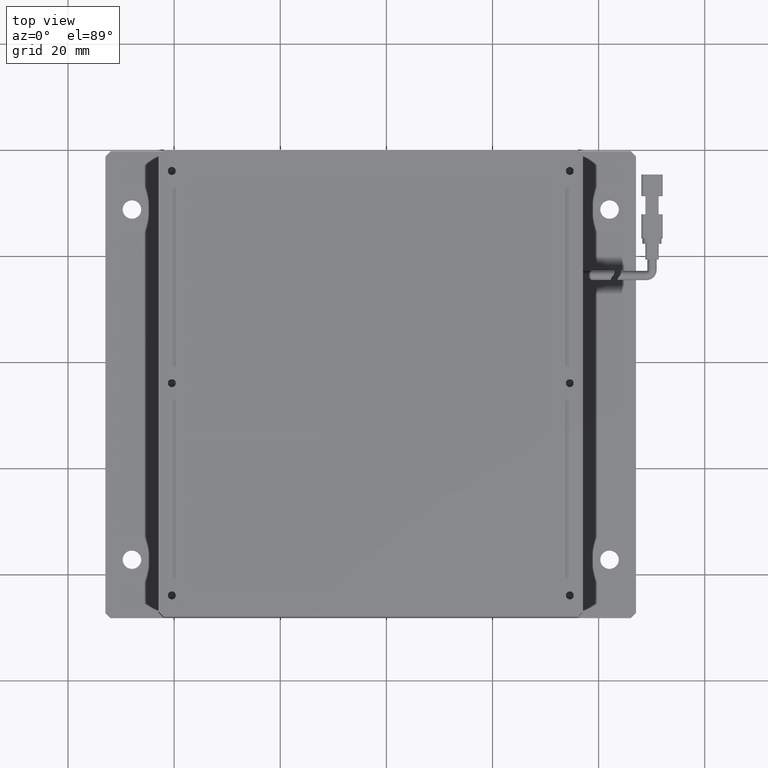
[diagram: clean part render]
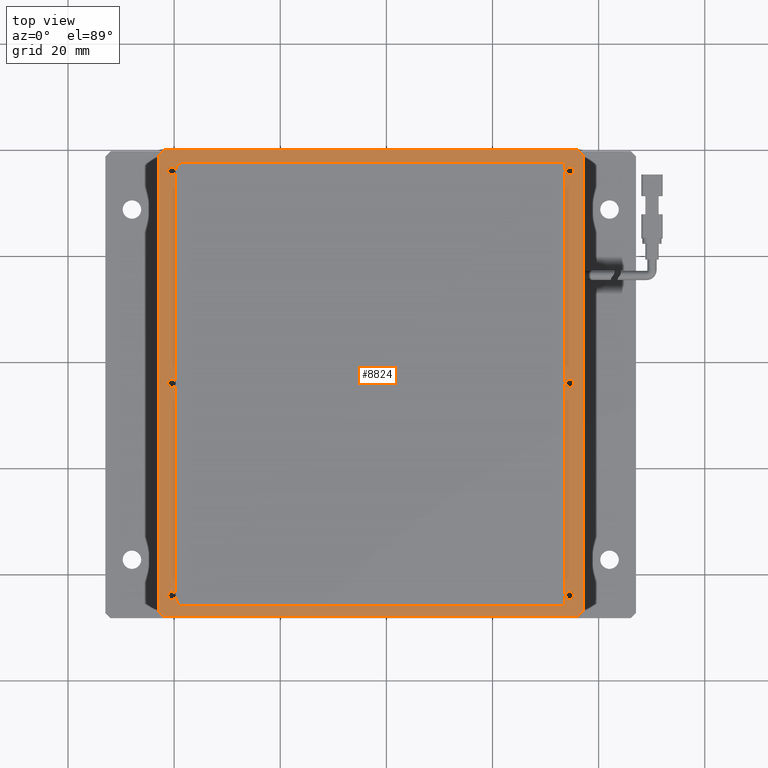
[diagram: same view with one face highlighted and labeled with its STEP entity id]
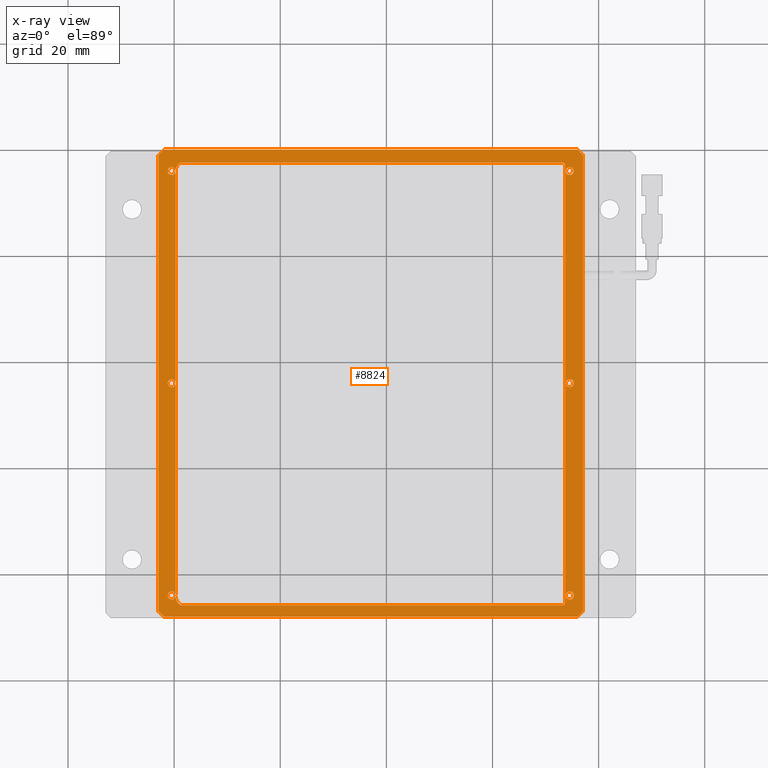
[diagram: x-ray of the same camera — body ghosted, the highlighted face saturated]
A machine part, top view. The second image highlights one B-rep face of the part: STEP entity #8824.
The next image is the same camera in x-ray: the body ghosted, the highlighted face saturated — about 0% of this face is hidden behind the body in this view.
In plain terms, the highlighted planar face has unit normal (0, 0, 1).
Its self-contained STEP definition (entity closure, byte-faithful):
#59 = AXIS2_PLACEMENT_3D ( 'NONE', #11058, #2837, #12440 ) ;
#161 = VERTEX_POINT ( 'NONE', #16675 ) ;
#191 = CARTESIAN_POINT ( 'NONE',  ( -22.94768995799926300, 38.79992363497525800, 12.99999999999545100 ) ) ;
#239 = EDGE_CURVE ( 'NONE', #1708, #8873, #7876, .T. ) ;
#327 = VERTEX_POINT ( 'NONE', #4115 ) ;
#369 = AXIS2_PLACEMENT_3D ( 'NONE', #549, #10198, #1959 ) ;
#391 = LINE ( 'NONE', #3868, #861 ) ;
#444 = EDGE_LOOP ( 'NONE', ( #10811, #7836, #14791, #6425, #3735, #10261, #12607, #2187 ) ) ;
#496 = CARTESIAN_POINT ( 'NONE',  ( 56.05231004200068400, -48.20007636502477800, 12.99999999999545300 ) ) ;
#545 = FACE_BOUND ( 'NONE', #16359, .T. ) ;
#549 = CARTESIAN_POINT ( 'NONE',  ( 53.02138361069504000, -45.42049587066020400, 12.99999999999545100 ) ) ;
#619 = CIRCLE ( 'NONE', #369, 0.6535848440912123100 ) ;
#774 = VECTOR ( 'NONE', #16755, 1000.000000000000000 ) ;
#861 = VECTOR ( 'NONE', #4813, 1000.000000000000000 ) ;
#917 = ORIENTED_EDGE ( 'NONE', *, *, #239, .F. ) ;
#974 = CIRCLE ( 'NONE', #2180, 1.704916820428607800 ) ;
#995 = CARTESIAN_POINT ( 'NONE',  ( -22.94768995799933400, -47.20007636502474200, 12.99999999999545300 ) ) ;
#1004 = FACE_OUTER_BOUND ( 'NONE', #444, .T. ) ;
#1015 = CARTESIAN_POINT ( 'NONE',  ( -17.99359334202489800, 35.85280168339946300, 12.99999999999545100 ) ) ;
#1356 = CIRCLE ( 'NONE', #5939, 1.975858414804687600 ) ;
#1365 = DIRECTION ( 'NONE',  ( 0.0000000000000000000, 0.0000000000000000000, -1.000000000000000000 ) ) ;
#1407 = DIRECTION ( 'NONE',  ( 1.000000000000000000, -4.440892098500626200E-016, 0.0000000000000000000 ) ) ;
#1463 = EDGE_CURVE ( 'NONE', #6021, #9990, #4423, .T. ) ;
#1568 = CARTESIAN_POINT ( 'NONE',  ( -17.72795718517141900, -44.35554108450326500, 12.99999999999545100 ) ) ;
#1574 = ORIENTED_EDGE ( 'NONE', *, *, #14729, .T. ) ;
#1639 = LINE ( 'NONE', #10894, #5771 ) ;
#1708 = VERTEX_POINT ( 'NONE', #1826 ) ;
#1826 = CARTESIAN_POINT ( 'NONE',  ( 53.67496845478625300, 36.99773376028026200, 12.99999999999545100 ) ) ;
#1889 = ORIENTED_EDGE ( 'NONE', *, *, #3995, .T. ) ;
#1890 = ORIENTED_EDGE ( 'NONE', *, *, #2288, .F. ) ;
#1916 = VERTEX_POINT ( 'NONE', #4758 ) ;
#1959 = DIRECTION ( 'NONE',  ( -1.000000000000000000, 0.0000000000000000000, 0.0000000000000000000 ) ) ;
#2005 = CARTESIAN_POINT ( 'NONE',  ( -20.44768995799928700, -44.20007636502474200, 12.99999999999545100 ) ) ;
#2060 = VERTEX_POINT ( 'NONE', #12704 ) ;
#2079 = ORIENTED_EDGE ( 'NONE', *, *, #3732, .T. ) ;
#2180 = AXIS2_PLACEMENT_3D ( 'NONE', #13088, #4912, #14420 ) ;
#2182 = EDGE_CURVE ( 'NONE', #12620, #17421, #13372, .T. ) ;
#2187 = ORIENTED_EDGE ( 'NONE', *, *, #8634, .T. ) ;
#2199 = ORIENTED_EDGE ( 'NONE', *, *, #9607, .T. ) ;
#2288 = EDGE_CURVE ( 'NONE', #12009, #6045, #5724, .T. ) ;
#2399 = DIRECTION ( 'NONE',  ( -1.000000000000000000, 0.0000000000000000000, 0.0000000000000000000 ) ) ;
#2481 = CARTESIAN_POINT ( 'NONE',  ( 57.05231004200072700, 39.79992363497522200, 12.99999999999545100 ) ) ;
#2498 = VERTEX_POINT ( 'NONE', #9360 ) ;
#2588 = CARTESIAN_POINT ( 'NONE',  ( 55.30231004200074100, 35.79992363497522900, 12.99999999999545100 ) ) ;
#2590 = AXIS2_PLACEMENT_3D ( 'NONE', #7831, #7787, #7722 ) ;
#2662 = CIRCLE ( 'NONE', #7315, 0.7500000000000006700 ) ;
#2700 = CIRCLE ( 'NONE', #11526, 0.7500000000000006700 ) ;
#2713 = CARTESIAN_POINT ( 'NONE',  ( -18.76415559455955800, -46.03789340543249900, 12.99999999999545100 ) ) ;
#2737 = VERTEX_POINT ( 'NONE', #4545 ) ;
#2822 = ORIENTED_EDGE ( 'NONE', *, *, #4934, .T. ) ;
#2837 = DIRECTION ( 'NONE',  ( 0.0000000000000000000, 0.0000000000000000000, -1.000000000000000000 ) ) ;
#2863 = LINE ( 'NONE', #16452, #6145 ) ;
#2890 = CARTESIAN_POINT ( 'NONE',  ( 53.07545545019090800, 36.74185223224468900, 12.99999999999545100 ) ) ;
#2894 = LINE ( 'NONE', #4089, #10208 ) ;
#2943 = DIRECTION ( 'NONE',  ( 1.000000000000000000, 0.0000000000000000000, 0.0000000000000000000 ) ) ;
#3117 = VERTEX_POINT ( 'NONE', #13240 ) ;
#3412 = DIRECTION ( 'NONE',  ( -1.000000000000000000, 0.0000000000000000000, 0.0000000000000000000 ) ) ;
#3552 = VERTEX_POINT ( 'NONE', #191 ) ;
#3727 = DIRECTION ( 'NONE',  ( 0.0000000000000000000, 0.0000000000000000000, 1.000000000000000000 ) ) ;
#3732 = EDGE_CURVE ( 'NONE', #9990, #6021, #11075, .T. ) ;
#3735 = ORIENTED_EDGE ( 'NONE', *, *, #13996, .T. ) ;
#3793 = DIRECTION ( 'NONE',  ( -0.7071067811865472400, 0.7071067811865479100, 0.0000000000000000000 ) ) ;
#3868 = CARTESIAN_POINT ( 'NONE',  ( -18.76415559455955800, 37.37364854602209600, 12.99999999999545100 ) ) ;
#3995 = EDGE_CURVE ( 'NONE', #2737, #12838, #11278, .T. ) ;
#4052 = CARTESIAN_POINT ( 'NONE',  ( 57.05231004200069800, -48.20007636502477800, 12.99999999999545100 ) ) ;
#4062 = PLANE ( 'NONE',  #16482 ) ;
#4089 = CARTESIAN_POINT ( 'NONE',  ( 57.05231004200074100, 39.79992363497522200, 12.99999999999545100 ) ) ;
#4115 = CARTESIAN_POINT ( 'NONE',  ( -19.69768995799924100, -4.200076365024743900, 12.99999999999545100 ) ) ;
#4172 = AXIS2_PLACEMENT_3D ( 'NONE', #12130, #11777, #5405 ) ;
#4250 = FACE_BOUND ( 'NONE', #4574, .T. ) ;
#4299 = CIRCLE ( 'NONE', #6250, 1.704916820428607800 ) ;
#4423 = CIRCLE ( 'NONE', #4172, 0.7500000000000006700 ) ;
#4424 = DIRECTION ( 'NONE',  ( 0.0000000000000000000, 0.0000000000000000000, -1.000000000000000000 ) ) ;
#4432 = CARTESIAN_POINT ( 'NONE',  ( 53.23584440544043900, 37.37364854602209600, 12.99999999999545100 ) ) ;
#4545 = CARTESIAN_POINT ( 'NONE',  ( -19.69768995799924800, 35.79992363497520800, 12.99999999999545100 ) ) ;
#4574 = EDGE_LOOP ( 'NONE', ( #10871, #1889, #10250, #17717, #15802, #15252, #917, #15528, #6823, #1890, #15295, #5634, #14167, #17453, #10743, #2199, #8448 ) ) ;
#4677 = ORIENTED_EDGE ( 'NONE', *, *, #1463, .T. ) ;
#4697 = FACE_BOUND ( 'NONE', #5476, .T. ) ;
#4758 = CARTESIAN_POINT ( 'NONE',  ( -22.94768995799931900, -47.20007636502475600, 12.99999999999545100 ) ) ;
#4813 = DIRECTION ( 'NONE',  ( -1.000000000000000000, -0.0000000000000000000, -0.0000000000000000000 ) ) ;
#4874 = VERTEX_POINT ( 'NONE', #10809 ) ;
#4912 = DIRECTION ( 'NONE',  ( 0.0000000000000000000, 0.0000000000000000000, 1.000000000000000000 ) ) ;
#4934 = EDGE_CURVE ( 'NONE', #11398, #13767, #5872, .T. ) ;
#4998 = DIRECTION ( 'NONE',  ( 0.0000000000000000000, 0.0000000000000000000, -1.000000000000000000 ) ) ;
#5040 = CARTESIAN_POINT ( 'NONE',  ( -22.94768995799926300, 39.79992363497525800, 12.99999999999545100 ) ) ;
#5063 = EDGE_CURVE ( 'NONE', #8873, #17556, #391, .T. ) ;
#5174 = CARTESIAN_POINT ( 'NONE',  ( 56.05231004200067000, -48.20007636502477800, 12.99999999999545100 ) ) ;
#5204 = EDGE_CURVE ( 'NONE', #6045, #13670, #619, .T. ) ;
#5222 = CARTESIAN_POINT ( 'NONE',  ( 57.05231004200074100, 38.79992363497522900, 12.99999999999545300 ) ) ;
#5242 = CIRCLE ( 'NONE', #13389, 1.975858414804687600 ) ;
#5268 = CIRCLE ( 'NONE', #17535, 0.7500000000000006700 ) ;
#5405 = DIRECTION ( 'NONE',  ( -1.000000000000000000, 0.0000000000000000000, 0.0000000000000000000 ) ) ;
#5476 = EDGE_LOOP ( 'NONE', ( #11202, #1574 ) ) ;
#5516 = CARTESIAN_POINT ( 'NONE',  ( 55.30231004200072700, -4.200076365024778500, 12.99999999999545100 ) ) ;
#5611 = CARTESIAN_POINT ( 'NONE',  ( -20.44768995799927700, -4.200076365024743900, 12.99999999999545100 ) ) ;
#5634 = ORIENTED_EDGE ( 'NONE', *, *, #9958, .F. ) ;
#5685 = EDGE_CURVE ( 'NONE', #12838, #12854, #11142, .T. ) ;
#5724 = LINE ( 'NONE', #13392, #12113 ) ;
#5771 = VECTOR ( 'NONE', #12276, 1000.000000000000000 ) ;
#5819 = CIRCLE ( 'NONE', #15531, 0.7500000000000006700 ) ;
#5825 = VECTOR ( 'NONE', #3793, 1000.000000000000000 ) ;
#5872 = CIRCLE ( 'NONE', #2590, 0.7500000000000006700 ) ;
#5939 = AXIS2_PLACEMENT_3D ( 'NONE', #11951, #3727, #13302 ) ;
#5980 = EDGE_CURVE ( 'NONE', #3117, #7393, #16221, .T. ) ;
#6020 = DIRECTION ( 'NONE',  ( 0.0000000000000000000, 0.0000000000000000000, -1.000000000000000000 ) ) ;
#6021 = VERTEX_POINT ( 'NONE', #2588 ) ;
#6045 = VERTEX_POINT ( 'NONE', #8167 ) ;
#6145 = VECTOR ( 'NONE', #13787, 1000.000000000000000 ) ;
#6197 = VERTEX_POINT ( 'NONE', #16727 ) ;
#6250 = AXIS2_PLACEMENT_3D ( 'NONE', #1015, #10631, #2399 ) ;
#6425 = ORIENTED_EDGE ( 'NONE', *, *, #5980, .T. ) ;
#6436 = DIRECTION ( 'NONE',  ( -4.440892098500626200E-016, -1.000000000000000000, -0.0000000000000000000 ) ) ;
#6507 = EDGE_CURVE ( 'NONE', #327, #17421, #1639, .T. ) ;
#6540 = EDGE_CURVE ( 'NONE', #8021, #14915, #14460, .T. ) ;
#6823 = ORIENTED_EDGE ( 'NONE', *, *, #5204, .F. ) ;
#6847 = DIRECTION ( 'NONE',  ( -1.000000000000000000, 4.440892098500626200E-016, -0.0000000000000000000 ) ) ;
#6867 = VECTOR ( 'NONE', #8797, 1000.000000000000000 ) ;
#6889 = CARTESIAN_POINT ( 'NONE',  ( -21.19768995799927700, -4.200076365024743900, 12.99999999999545100 ) ) ;
#6985 = DIRECTION ( 'NONE',  ( -1.000000000000000000, 0.0000000000000000000, 0.0000000000000000000 ) ) ;
#7113 = CARTESIAN_POINT ( 'NONE',  ( 57.05231004200074100, 39.79992363497522200, 12.99999999999545100 ) ) ;
#7186 = EDGE_CURVE ( 'NONE', #6197, #12009, #5242, .T. ) ;
#7315 = AXIS2_PLACEMENT_3D ( 'NONE', #13164, #4998, #14511 ) ;
#7393 = VERTEX_POINT ( 'NONE', #14350 ) ;
#7468 = ORIENTED_EDGE ( 'NONE', *, *, #7634, .T. ) ;
#7634 = EDGE_CURVE ( 'NONE', #13767, #11398, #16061, .T. ) ;
#7640 = VERTEX_POINT ( 'NONE', #6889 ) ;
#7681 = CARTESIAN_POINT ( 'NONE',  ( 55.30231004200070500, -44.20007636502477800, 12.99999999999545100 ) ) ;
#7722 = DIRECTION ( 'NONE',  ( -1.000000000000000000, 0.0000000000000000000, 0.0000000000000000000 ) ) ;
#7787 = DIRECTION ( 'NONE',  ( 0.0000000000000000000, 0.0000000000000000000, -1.000000000000000000 ) ) ;
#7831 = CARTESIAN_POINT ( 'NONE',  ( 54.55231004200072700, -4.200076365024778500, 12.99999999999545100 ) ) ;
#7836 = ORIENTED_EDGE ( 'NONE', *, *, #16862, .T. ) ;
#7876 = CIRCLE ( 'NONE', #9690, 0.6518367886739415700 ) ;
#7978 = CARTESIAN_POINT ( 'NONE',  ( -21.19768995799924800, 35.79992363497525800, 12.99999999999545100 ) ) ;
#8021 = VERTEX_POINT ( 'NONE', #10582 ) ;
#8039 = EDGE_CURVE ( 'NONE', #17556, #2060, #4299, .T. ) ;
#8146 = LINE ( 'NONE', #10011, #774 ) ;
#8167 = CARTESIAN_POINT ( 'NONE',  ( 53.23584440544043900, -46.03789340543249900, 12.99999999999545100 ) ) ;
#8288 = VECTOR ( 'NONE', #10788, 1000.000000000000000 ) ;
#8448 = ORIENTED_EDGE ( 'NONE', *, *, #16157, .T. ) ;
#8464 = DIRECTION ( 'NONE',  ( 0.0000000000000000000, 0.0000000000000000000, 1.000000000000000000 ) ) ;
#8484 = DIRECTION ( 'NONE',  ( 1.000000000000000000, -4.440892098500626200E-016, 0.0000000000000000000 ) ) ;
#8634 = EDGE_CURVE ( 'NONE', #1916, #8021, #16620, .T. ) ;
#8797 = DIRECTION ( 'NONE',  ( 0.7071067811865479100, 0.7071067811865472400, 0.0000000000000000000 ) ) ;
#8824 = ADVANCED_FACE ( 'NONE', ( #4250, #545, #4697, #1004, #11514 ), #4062, .T. ) ;
#8873 = VERTEX_POINT ( 'NONE', #4432 ) ;
#8905 = EDGE_CURVE ( 'NONE', #14896, #3552, #8146, .T. ) ;
#9360 = CARTESIAN_POINT ( 'NONE',  ( 57.05231004200068400, -47.20007636502477800, 12.99999999999545100 ) ) ;
#9514 = LINE ( 'NONE', #5040, #16275 ) ;
#9607 = EDGE_CURVE ( 'NONE', #327, #7640, #13807, .T. ) ;
#9613 = CARTESIAN_POINT ( 'NONE',  ( 54.55231004200072700, -4.200076365024778500, 12.99999999999545100 ) ) ;
#9690 = AXIS2_PLACEMENT_3D ( 'NONE', #2890, #8464, #13297 ) ;
#9958 = EDGE_CURVE ( 'NONE', #161, #6197, #1356, .T. ) ;
#9990 = VERTEX_POINT ( 'NONE', #14715 ) ;
#10011 = CARTESIAN_POINT ( 'NONE',  ( -21.94768995799926300, 39.79992363497525800, 12.99999999999545300 ) ) ;
#10198 = DIRECTION ( 'NONE',  ( 0.0000000000000000000, 0.0000000000000000000, 1.000000000000000000 ) ) ;
#10208 = VECTOR ( 'NONE', #6847, 1000.000000000000000 ) ;
#10250 = ORIENTED_EDGE ( 'NONE', *, *, #5685, .T. ) ;
#10261 = ORIENTED_EDGE ( 'NONE', *, *, #8905, .T. ) ;
#10401 = EDGE_LOOP ( 'NONE', ( #7468, #2822 ) ) ;
#10561 = AXIS2_PLACEMENT_3D ( 'NONE', #11268, #11252, #11143 ) ;
#10582 = CARTESIAN_POINT ( 'NONE',  ( -21.94768995799933400, -48.20007636502474200, 12.99999999999545100 ) ) ;
#10631 = DIRECTION ( 'NONE',  ( 0.0000000000000000000, 0.0000000000000000000, 1.000000000000000000 ) ) ;
#10743 = ORIENTED_EDGE ( 'NONE', *, *, #6507, .F. ) ;
#10788 = DIRECTION ( 'NONE',  ( 0.0000000000000000000, 1.000000000000000000, 0.0000000000000000000 ) ) ;
#10790 = AXIS2_PLACEMENT_3D ( 'NONE', #12627, #4424, #13960 ) ;
#10809 = CARTESIAN_POINT ( 'NONE',  ( 53.80231004200070500, -44.20007636502477800, 12.99999999999545100 ) ) ;
#10811 = ORIENTED_EDGE ( 'NONE', *, *, #6540, .T. ) ;
#10868 = VECTOR ( 'NONE', #1407, 1000.000000000000000 ) ;
#10871 = ORIENTED_EDGE ( 'NONE', *, *, #13573, .F. ) ;
#10894 = CARTESIAN_POINT ( 'NONE',  ( -19.69768995799924800, 35.79992363497525800, 12.99999999999545100 ) ) ;
#10972 = DIRECTION ( 'NONE',  ( -1.000000000000000000, 0.0000000000000000000, 0.0000000000000000000 ) ) ;
#11058 = CARTESIAN_POINT ( 'NONE',  ( -20.44768995799927700, -4.200076365024743900, 12.99999999999545100 ) ) ;
#11075 = CIRCLE ( 'NONE', #17251, 0.7500000000000006700 ) ;
#11142 = CIRCLE ( 'NONE', #10790, 0.7500000000000006700 ) ;
#11143 = DIRECTION ( 'NONE',  ( -1.000000000000000000, 0.0000000000000000000, 0.0000000000000000000 ) ) ;
#11167 = DIRECTION ( 'NONE',  ( 0.0000000000000000000, 0.0000000000000000000, 1.000000000000000000 ) ) ;
#11196 = EDGE_CURVE ( 'NONE', #3552, #1916, #9514, .T. ) ;
#11202 = ORIENTED_EDGE ( 'NONE', *, *, #14327, .T. ) ;
#11252 = DIRECTION ( 'NONE',  ( 0.0000000000000000000, 0.0000000000000000000, -1.000000000000000000 ) ) ;
#11268 = CARTESIAN_POINT ( 'NONE',  ( -20.44768995799924800, 35.79992363497525800, 12.99999999999545100 ) ) ;
#11278 = CIRCLE ( 'NONE', #10561, 0.7500000000000006700 ) ;
#11398 = VERTEX_POINT ( 'NONE', #5516 ) ;
#11514 = FACE_BOUND ( 'NONE', #10401, .T. ) ;
#11526 = AXIS2_PLACEMENT_3D ( 'NONE', #2005, #11606, #3412 ) ;
#11529 = CARTESIAN_POINT ( 'NONE',  ( -20.44768995799928700, -44.20007636502474200, 12.99999999999545100 ) ) ;
#11550 = DIRECTION ( 'NONE',  ( 0.0000000000000000000, 0.0000000000000000000, -1.000000000000000000 ) ) ;
#11606 = DIRECTION ( 'NONE',  ( 0.0000000000000000000, 0.0000000000000000000, -1.000000000000000000 ) ) ;
#11671 = DIRECTION ( 'NONE',  ( -1.000000000000000000, 0.0000000000000000000, 0.0000000000000000000 ) ) ;
#11777 = DIRECTION ( 'NONE',  ( 0.0000000000000000000, 0.0000000000000000000, -1.000000000000000000 ) ) ;
#11898 = VECTOR ( 'NONE', #13442, 1000.000000000000000 ) ;
#11951 = CARTESIAN_POINT ( 'NONE',  ( -17.72795718517141900, -44.35554108450326500, 12.99999999999545100 ) ) ;
#12009 = VERTEX_POINT ( 'NONE', #2713 ) ;
#12113 = VECTOR ( 'NONE', #14009, 1000.000000000000000 ) ;
#12130 = CARTESIAN_POINT ( 'NONE',  ( 54.55231004200074100, 35.79992363497522900, 12.99999999999545100 ) ) ;
#12147 = CARTESIAN_POINT ( 'NONE',  ( 53.67496845478625300, -45.42049587066020400, 12.99999999999545100 ) ) ;
#12276 = DIRECTION ( 'NONE',  ( 1.301042606982605300E-016, -1.000000000000000000, 0.0000000000000000000 ) ) ;
#12318 = LINE ( 'NONE', #12147, #8288 ) ;
#12390 = AXIS2_PLACEMENT_3D ( 'NONE', #9613, #1365, #10972 ) ;
#12440 = DIRECTION ( 'NONE',  ( -1.000000000000000000, 0.0000000000000000000, 0.0000000000000000000 ) ) ;
#12607 = ORIENTED_EDGE ( 'NONE', *, *, #11196, .T. ) ;
#12620 = VERTEX_POINT ( 'NONE', #13988 ) ;
#12627 = CARTESIAN_POINT ( 'NONE',  ( -20.44768995799924800, 35.79992363497525800, 12.99999999999545100 ) ) ;
#12704 = CARTESIAN_POINT ( 'NONE',  ( -19.69851016245350600, 35.85280168339946300, 12.99999999999545100 ) ) ;
#12811 = CARTESIAN_POINT ( 'NONE',  ( -19.69768995799923800, -44.20007636502474200, 12.99999999999545100 ) ) ;
#12838 = VERTEX_POINT ( 'NONE', #7978 ) ;
#12854 = VERTEX_POINT ( 'NONE', #17499 ) ;
#13038 = VECTOR ( 'NONE', #13338, 1000.000000000000000 ) ;
#13088 = CARTESIAN_POINT ( 'NONE',  ( -17.99359334202489800, 35.85280168339946300, 12.99999999999545100 ) ) ;
#13163 = CARTESIAN_POINT ( 'NONE',  ( -18.76415559455955800, 37.37364854602209600, 12.99999999999545100 ) ) ;
#13164 = CARTESIAN_POINT ( 'NONE',  ( 54.55231004200070500, -44.20007636502477800, 12.99999999999545100 ) ) ;
#13240 = CARTESIAN_POINT ( 'NONE',  ( 57.05231004200074100, 38.79992363497521500, 12.99999999999545100 ) ) ;
#13297 = DIRECTION ( 'NONE',  ( -1.000000000000000000, 0.0000000000000000000, 0.0000000000000000000 ) ) ;
#13302 = DIRECTION ( 'NONE',  ( 1.000000000000000000, 0.0000000000000000000, 0.0000000000000000000 ) ) ;
#13330 = EDGE_CURVE ( 'NONE', #2498, #3117, #15473, .T. ) ;
#13338 = DIRECTION ( 'NONE',  ( 0.7071067811865472400, -0.7071067811865479100, -0.0000000000000000000 ) ) ;
#13372 = CIRCLE ( 'NONE', #13686, 0.7500000000000006700 ) ;
#13389 = AXIS2_PLACEMENT_3D ( 'NONE', #1568, #11167, #2943 ) ;
#13392 = CARTESIAN_POINT ( 'NONE',  ( -18.76415559455955800, -46.03789340543249900, 12.99999999999545100 ) ) ;
#13397 = EDGE_CURVE ( 'NONE', #13670, #1708, #12318, .T. ) ;
#13442 = DIRECTION ( 'NONE',  ( 4.440892098500626200E-016, 1.000000000000000000, 0.0000000000000000000 ) ) ;
#13573 = EDGE_CURVE ( 'NONE', #2737, #327, #2863, .T. ) ;
#13650 = LINE ( 'NONE', #496, #6867 ) ;
#13670 = VERTEX_POINT ( 'NONE', #16740 ) ;
#13686 = AXIS2_PLACEMENT_3D ( 'NONE', #11529, #11550, #11671 ) ;
#13767 = VERTEX_POINT ( 'NONE', #14308 ) ;
#13787 = DIRECTION ( 'NONE',  ( 1.301042606982605300E-016, -1.000000000000000000, 0.0000000000000000000 ) ) ;
#13805 = EDGE_CURVE ( 'NONE', #2060, #12854, #974, .T. ) ;
#13807 = CIRCLE ( 'NONE', #59, 0.7500000000000006700 ) ;
#13960 = DIRECTION ( 'NONE',  ( -1.000000000000000000, 0.0000000000000000000, 0.0000000000000000000 ) ) ;
#13988 = CARTESIAN_POINT ( 'NONE',  ( -21.19768995799929100, -44.20007636502474200, 12.99999999999545100 ) ) ;
#13996 = EDGE_CURVE ( 'NONE', #7393, #14896, #2894, .T. ) ;
#14009 = DIRECTION ( 'NONE',  ( 1.000000000000000000, 0.0000000000000000000, 0.0000000000000000000 ) ) ;
#14129 = CARTESIAN_POINT ( 'NONE',  ( 54.55231004200070500, -44.20007636502477800, 12.99999999999545100 ) ) ;
#14167 = ORIENTED_EDGE ( 'NONE', *, *, #17452, .T. ) ;
#14212 = DIRECTION ( 'NONE',  ( -1.000000000000000000, 0.0000000000000000000, 0.0000000000000000000 ) ) ;
#14308 = CARTESIAN_POINT ( 'NONE',  ( 53.80231004200072700, -4.200076365024778500, 12.99999999999545100 ) ) ;
#14327 = EDGE_CURVE ( 'NONE', #4874, #15383, #2662, .T. ) ;
#14350 = CARTESIAN_POINT ( 'NONE',  ( 56.05231004200073400, 39.79992363497522200, 12.99999999999545100 ) ) ;
#14420 = DIRECTION ( 'NONE',  ( -1.000000000000000000, 0.0000000000000000000, 0.0000000000000000000 ) ) ;
#14460 = LINE ( 'NONE', #4052, #10868 ) ;
#14511 = DIRECTION ( 'NONE',  ( -1.000000000000000000, 0.0000000000000000000, 0.0000000000000000000 ) ) ;
#14715 = CARTESIAN_POINT ( 'NONE',  ( 53.80231004200074100, 35.79992363497522900, 12.99999999999545100 ) ) ;
#14729 = EDGE_CURVE ( 'NONE', #15383, #4874, #5268, .T. ) ;
#14791 = ORIENTED_EDGE ( 'NONE', *, *, #13330, .T. ) ;
#14806 = DIRECTION ( 'NONE',  ( 0.0000000000000000000, 0.0000000000000000000, -1.000000000000000000 ) ) ;
#14896 = VERTEX_POINT ( 'NONE', #17095 ) ;
#14915 = VERTEX_POINT ( 'NONE', #5174 ) ;
#15087 = DIRECTION ( 'NONE',  ( 0.0000000000000000000, 0.0000000000000000000, -1.000000000000000000 ) ) ;
#15252 = ORIENTED_EDGE ( 'NONE', *, *, #5063, .F. ) ;
#15295 = ORIENTED_EDGE ( 'NONE', *, *, #7186, .F. ) ;
#15383 = VERTEX_POINT ( 'NONE', #7681 ) ;
#15473 = LINE ( 'NONE', #2481, #11898 ) ;
#15497 = DIRECTION ( 'NONE',  ( -1.000000000000000000, 0.0000000000000000000, 0.0000000000000000000 ) ) ;
#15528 = ORIENTED_EDGE ( 'NONE', *, *, #13397, .F. ) ;
#15531 = AXIS2_PLACEMENT_3D ( 'NONE', #5611, #15087, #6985 ) ;
#15802 = ORIENTED_EDGE ( 'NONE', *, *, #8039, .F. ) ;
#16061 = CIRCLE ( 'NONE', #12390, 0.7500000000000006700 ) ;
#16157 = EDGE_CURVE ( 'NONE', #7640, #327, #5819, .T. ) ;
#16179 = CARTESIAN_POINT ( 'NONE',  ( 54.55231004200074100, 35.79992363497522900, 12.99999999999545100 ) ) ;
#16221 = LINE ( 'NONE', #5222, #5825 ) ;
#16275 = VECTOR ( 'NONE', #6436, 1000.000000000000000 ) ;
#16359 = EDGE_LOOP ( 'NONE', ( #2079, #4677 ) ) ;
#16452 = CARTESIAN_POINT ( 'NONE',  ( -19.69768995799924800, 35.79992363497525800, 12.99999999999545100 ) ) ;
#16482 = AXIS2_PLACEMENT_3D ( 'NONE', #7113, #16583, #8484 ) ;
#16583 = DIRECTION ( 'NONE',  ( 0.0000000000000000000, 0.0000000000000000000, 1.000000000000000000 ) ) ;
#16620 = LINE ( 'NONE', #995, #13038 ) ;
#16675 = CARTESIAN_POINT ( 'NONE',  ( -19.70257519632305300, -44.28553976030114100, 12.99999999999545100 ) ) ;
#16727 = CARTESIAN_POINT ( 'NONE',  ( -19.70381559997610700, -44.35554108450326500, 12.99999999999545100 ) ) ;
#16740 = CARTESIAN_POINT ( 'NONE',  ( 53.67496845478625300, -45.42049587066020400, 12.99999999999545100 ) ) ;
#16755 = DIRECTION ( 'NONE',  ( -0.7071067811865479100, -0.7071067811865472400, 0.0000000000000000000 ) ) ;
#16862 = EDGE_CURVE ( 'NONE', #14915, #2498, #13650, .T. ) ;
#17095 = CARTESIAN_POINT ( 'NONE',  ( -21.94768995799926300, 39.79992363497525800, 12.99999999999545100 ) ) ;
#17251 = AXIS2_PLACEMENT_3D ( 'NONE', #16179, #14806, #14212 ) ;
#17421 = VERTEX_POINT ( 'NONE', #12811 ) ;
#17452 = EDGE_CURVE ( 'NONE', #161, #12620, #2700, .T. ) ;
#17453 = ORIENTED_EDGE ( 'NONE', *, *, #2182, .T. ) ;
#17499 = CARTESIAN_POINT ( 'NONE',  ( -19.69838603486584100, 35.83222890972854900, 12.99999999999545100 ) ) ;
#17535 = AXIS2_PLACEMENT_3D ( 'NONE', #14129, #6020, #15497 ) ;
#17556 = VERTEX_POINT ( 'NONE', #13163 ) ;
#17717 = ORIENTED_EDGE ( 'NONE', *, *, #13805, .F. ) ;